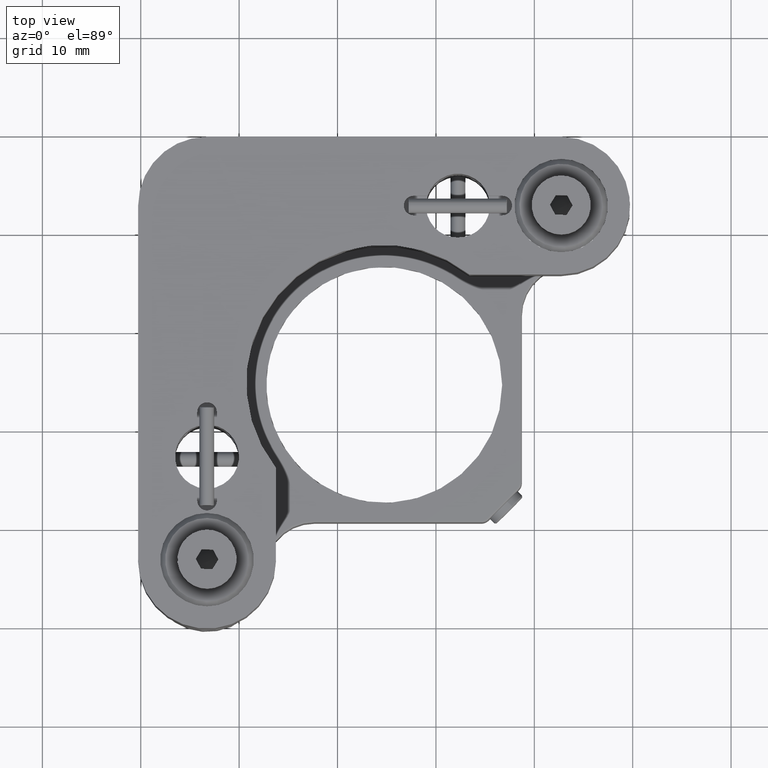
[diagram: clean part render]
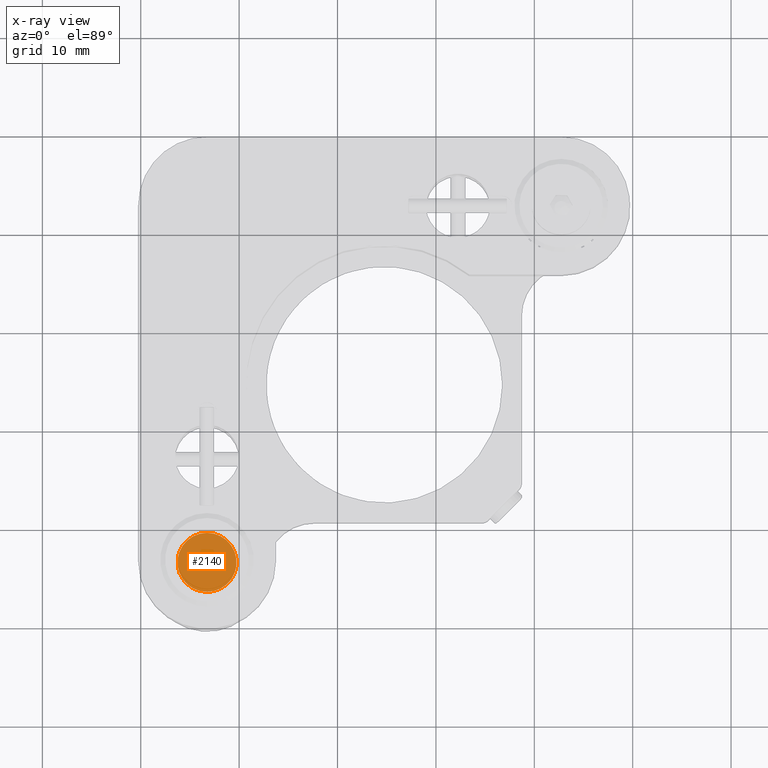
[diagram: x-ray — body ghosted, one internal face saturated and labeled with its STEP entity id]
A machine part, top view, then the same camera in x-ray: the body is ghosted and one INTERNAL B-rep face — a face not visible from any outside direction — is saturated and labeled: STEP entity #2140.
In plain terms, the highlighted planar face has unit normal (0, 0, 1).
Its self-contained STEP definition (entity closure, byte-faithful):
#239 = CIRCLE ( 'NONE', #4560, 3.000000000000000888 ) ;
#752 = CARTESIAN_POINT ( 'NONE',  ( 6.732450387463377872, 16.65705741463437661, 25.98193547686141969 ) ) ;
#1108 = DIRECTION ( 'NONE',  ( 0.000000000000000000, 0.000000000000000000, 1.000000000000000000 ) ) ;
#1510 = FACE_OUTER_BOUND ( 'NONE', #1936, .T. ) ;
#1936 = EDGE_LOOP ( 'NONE', ( #4040 ) ) ;
#2140 = ADVANCED_FACE ( 'NONE', ( #1510 ), #2642, .T. ) ;
#2642 = PLANE ( 'NONE',  #4016 ) ;
#3084 = VERTEX_POINT ( 'NONE', #5177 ) ;
#3152 = CARTESIAN_POINT ( 'NONE',  ( 6.732450387463377872, 16.65705741463437661, 25.98193547686141969 ) ) ;
#3627 = DIRECTION ( 'NONE',  ( 0.000000000000000000, 0.000000000000000000, 1.000000000000000000 ) ) ;
#4016 = AXIS2_PLACEMENT_3D ( 'NONE', #3152, #1108, #4293 ) ;
#4040 = ORIENTED_EDGE ( 'NONE', *, *, #4044, .T. ) ;
#4044 = EDGE_CURVE ( 'NONE', #3084, #3084, #239, .T. ) ;
#4293 = DIRECTION ( 'NONE',  ( 0.000000000000000000, -1.000000000000000000, 0.000000000000000000 ) ) ;
#4560 = AXIS2_PLACEMENT_3D ( 'NONE', #752, #3627, #4928 ) ;
#4928 = DIRECTION ( 'NONE',  ( 0.000000000000000000, -1.000000000000000000, 0.000000000000000000 ) ) ;
#5177 = CARTESIAN_POINT ( 'NONE',  ( 6.732450387463377872, 13.65705741463437661, 25.98193547686141969 ) ) ;